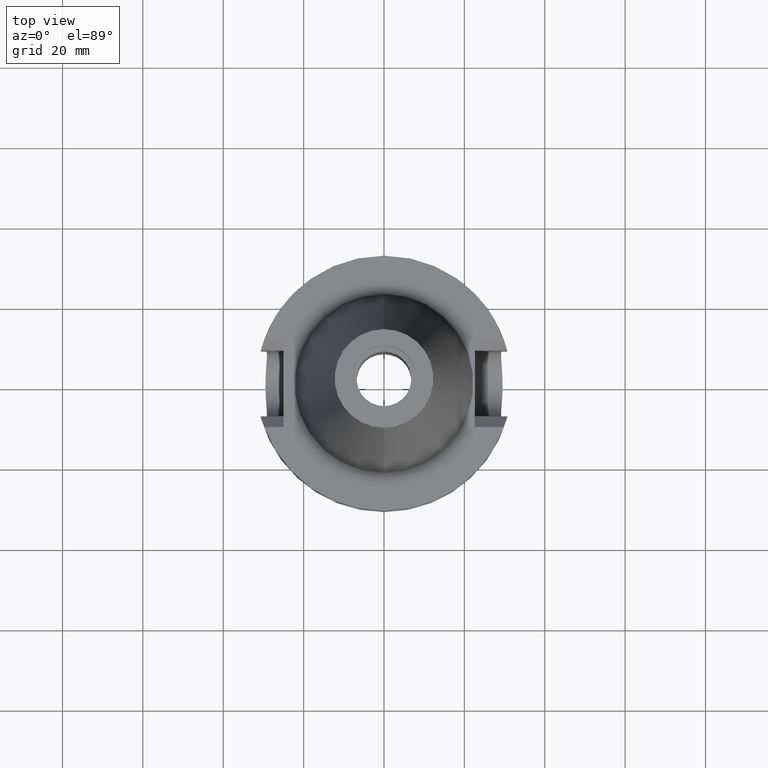
[diagram: clean part render]
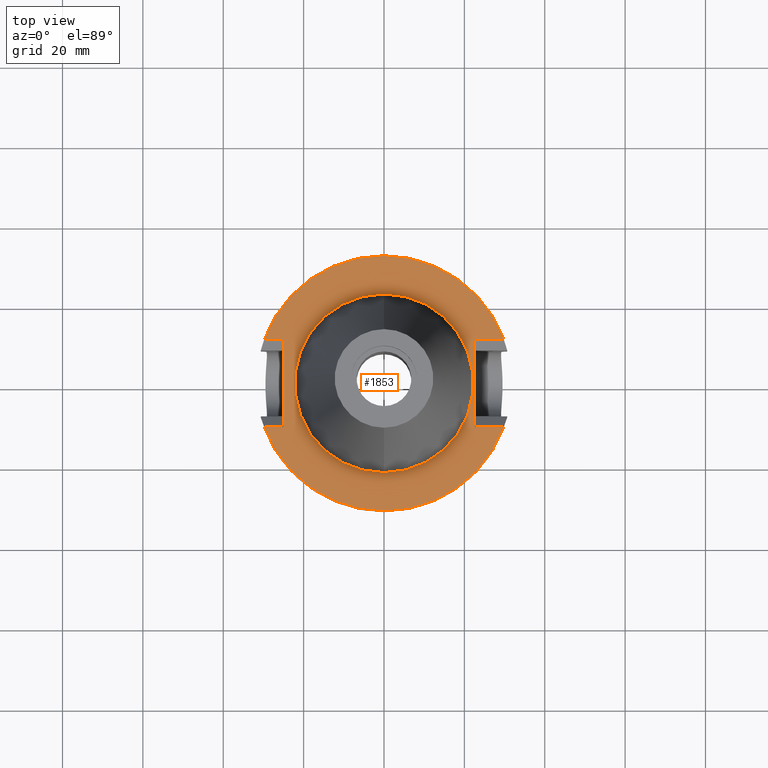
[diagram: same view with one face highlighted and labeled with its STEP entity id]
A machine part, top view. The second image highlights one B-rep face of the part: STEP entity #1853.
In plain terms, the highlighted planar face has unit normal (0, 0, -1).
Its self-contained STEP definition (entity closure, byte-faithful):
#94=DIRECTION('',(0.E0,-1.E0,0.E0));
#95=VECTOR('',#94,2.178E1);
#96=CARTESIAN_POINT('',(2.257E1,1.089E1,-1.E0));
#97=LINE('',#96,#95);
#101=DIRECTION('',(1.E0,5.877118954908E-14,0.E0));
#102=VECTOR('',#101,7.253990343347E0);
#103=CARTESIAN_POINT('',(2.257E1,-1.089E1,-1.E0));
#104=LINE('',#103,#102);
#108=CARTESIAN_POINT('',(0.E0,2.157919508608E-14,-1.E0));
#109=DIRECTION('',(0.E0,0.E0,-1.E0));
#110=DIRECTION('',(9.393382785306E-1,-3.429921259843E-1,0.E0));
#111=AXIS2_PLACEMENT_3D('',#108,#109,#110);
#116=CARTESIAN_POINT('',(0.E0,2.157919508608E-14,-1.E0));
#117=DIRECTION('',(0.E0,0.E0,-1.E0));
#118=DIRECTION('',(0.E0,-1.E0,0.E0));
#119=AXIS2_PLACEMENT_3D('',#116,#117,#118);
#124=DIRECTION('',(-1.E0,-8.727782216946E-14,0.E0));
#125=VECTOR('',#124,4.843990343348E0);
#126=CARTESIAN_POINT('',(-2.498E1,1.089E1,-1.E0));
#127=LINE('',#126,#125);
#131=CARTESIAN_POINT('',(0.E0,2.157919508608E-14,-1.E0));
#132=DIRECTION('',(0.E0,0.E0,-1.E0));
#133=DIRECTION('',(-9.393382785306E-1,3.429921259843E-1,0.E0));
#134=AXIS2_PLACEMENT_3D('',#131,#132,#133);
#139=CARTESIAN_POINT('',(0.E0,2.157919508608E-14,-1.E0));
#140=DIRECTION('',(0.E0,0.E0,-1.E0));
#141=DIRECTION('',(0.E0,1.E0,0.E0));
#142=AXIS2_PLACEMENT_3D('',#139,#140,#141);
#147=CARTESIAN_POINT('',(0.E0,2.157919508608E-14,-1.E0));
#148=DIRECTION('',(0.E0,0.E0,1.E0));
#149=DIRECTION('',(0.E0,-1.E0,0.E0));
#150=AXIS2_PLACEMENT_3D('',#147,#148,#149);
#155=CARTESIAN_POINT('',(0.E0,2.157919508608E-14,-1.E0));
#156=DIRECTION('',(0.E0,0.E0,1.E0));
#157=DIRECTION('',(0.E0,1.E0,0.E0));
#158=AXIS2_PLACEMENT_3D('',#155,#156,#157);
#214=DIRECTION('',(1.E0,-5.779166972326E-14,0.E0));
#215=VECTOR('',#214,7.253990343348E0);
#216=CARTESIAN_POINT('',(2.257E1,1.089E1,-1.E0));
#217=LINE('',#216,#215);
#674=DIRECTION('',(0.E0,-1.E0,0.E0));
#675=VECTOR('',#674,2.178E1);
#676=CARTESIAN_POINT('',(-2.498E1,1.089E1,-1.E0));
#677=LINE('',#676,#675);
#727=DIRECTION('',(-1.E0,8.727782216946E-14,0.E0));
#728=VECTOR('',#727,4.843990343348E0);
#729=CARTESIAN_POINT('',(-2.498E1,-1.089E1,-1.E0));
#730=LINE('',#729,#728);
#1657=CARTESIAN_POINT('',(-2.498E1,1.089E1,-1.E0));
#1658=CARTESIAN_POINT('',(-2.498E1,-1.089E1,-1.E0));
#1659=VERTEX_POINT('',#1657);
#1660=VERTEX_POINT('',#1658);
#1667=CARTESIAN_POINT('',(2.257E1,1.089E1,-1.E0));
#1668=CARTESIAN_POINT('',(2.257E1,-1.089E1,-1.E0));
#1669=VERTEX_POINT('',#1667);
#1670=VERTEX_POINT('',#1668);
#1671=CARTESIAN_POINT('',(2.982399034335E1,-1.089E1,-1.E0));
#1672=VERTEX_POINT('',#1671);
#1673=CARTESIAN_POINT('',(0.E0,-3.175E1,-1.E0));
#1674=CARTESIAN_POINT('',(-2.982399034335E1,-1.089E1,-1.E0));
#1675=VERTEX_POINT('',#1673);
#1676=VERTEX_POINT('',#1674);
#1677=CARTESIAN_POINT('',(-2.982399034335E1,1.089E1,-1.E0));
#1678=VERTEX_POINT('',#1677);
#1679=CARTESIAN_POINT('',(0.E0,3.175E1,-1.E0));
#1680=CARTESIAN_POINT('',(2.982399034335E1,1.089E1,-1.E0));
#1681=VERTEX_POINT('',#1679);
#1682=VERTEX_POINT('',#1680);
#1683=CARTESIAN_POINT('',(0.E0,-2.2225E1,-1.E0));
#1684=CARTESIAN_POINT('',(0.E0,2.2225E1,-1.E0));
#1685=VERTEX_POINT('',#1683);
#1686=VERTEX_POINT('',#1684);
#1822=CARTESIAN_POINT('',(0.E0,1.212400331156E-14,-1.E0));
#1823=DIRECTION('',(0.E0,0.E0,-1.E0));
#1824=DIRECTION('',(0.E0,-1.E0,0.E0));
#1825=AXIS2_PLACEMENT_3D('',#1822,#1823,#1824);
#1826=PLANE('',#1825);
#1828=ORIENTED_EDGE('',*,*,#1827,.T.);
#1830=ORIENTED_EDGE('',*,*,#1829,.T.);
#1832=ORIENTED_EDGE('',*,*,#1831,.T.);
#1834=ORIENTED_EDGE('',*,*,#1833,.T.);
#1836=ORIENTED_EDGE('',*,*,#1835,.F.);
#1838=ORIENTED_EDGE('',*,*,#1837,.F.);
#1840=ORIENTED_EDGE('',*,*,#1839,.T.);
#1842=ORIENTED_EDGE('',*,*,#1841,.T.);
#1844=ORIENTED_EDGE('',*,*,#1843,.T.);
#1846=ORIENTED_EDGE('',*,*,#1845,.F.);
#1847=EDGE_LOOP('',(#1828,#1830,#1832,#1834,#1836,#1838,#1840,#1842,#1844,
#1846));
#1848=FACE_OUTER_BOUND('',#1847,.F.);
#1849=ORIENTED_EDGE('',*,*,#1801,.T.);
#1850=ORIENTED_EDGE('',*,*,#1817,.T.);
#1851=EDGE_LOOP('',(#1849,#1850));
#1852=FACE_BOUND('',#1851,.F.);
#112=CIRCLE('',#111,3.175E1);
#120=CIRCLE('',#119,3.175E1);
#135=CIRCLE('',#134,3.175E1);
#143=CIRCLE('',#142,3.175E1);
#151=CIRCLE('',#150,2.2225E1);
#159=CIRCLE('',#158,2.2225E1);
#1801=EDGE_CURVE('',#1685,#1686,#151,.T.);
#1817=EDGE_CURVE('',#1686,#1685,#159,.T.);
#1827=EDGE_CURVE('',#1669,#1670,#97,.T.);
#1829=EDGE_CURVE('',#1670,#1672,#104,.T.);
#1831=EDGE_CURVE('',#1672,#1675,#112,.T.);
#1833=EDGE_CURVE('',#1675,#1676,#120,.T.);
#1835=EDGE_CURVE('',#1660,#1676,#730,.T.);
#1837=EDGE_CURVE('',#1659,#1660,#677,.T.);
#1839=EDGE_CURVE('',#1659,#1678,#127,.T.);
#1841=EDGE_CURVE('',#1678,#1681,#135,.T.);
#1843=EDGE_CURVE('',#1681,#1682,#143,.T.);
#1845=EDGE_CURVE('',#1669,#1682,#217,.T.);
#1853=ADVANCED_FACE('',(#1848,#1852),#1826,.F.);